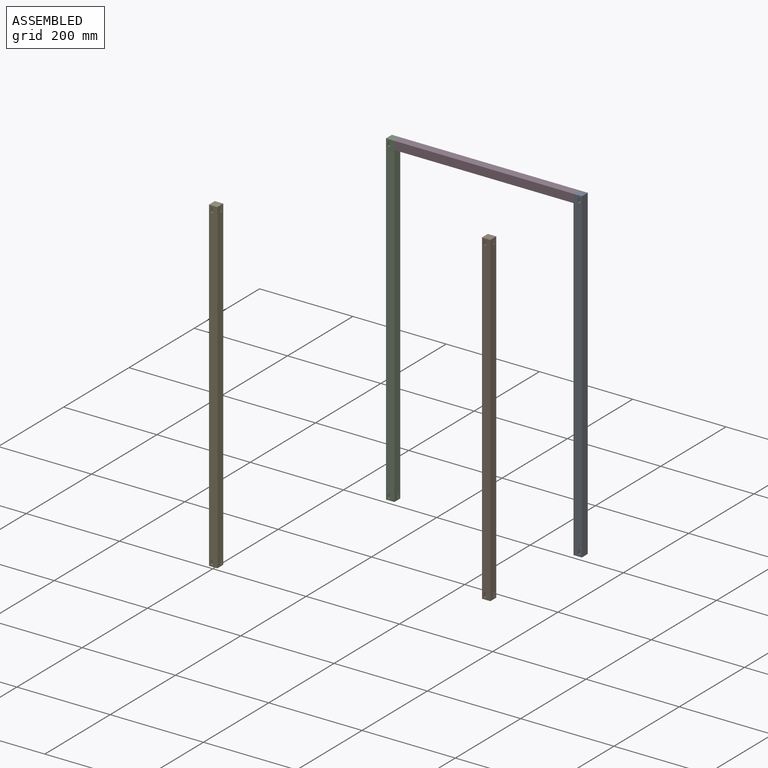
[diagram: assembled view]
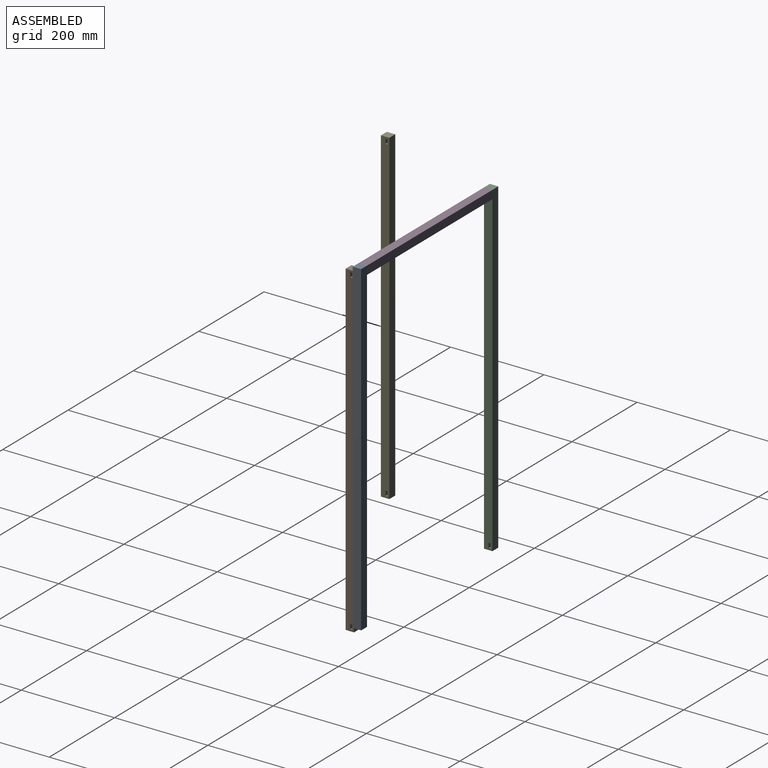
[diagram: assembled view, second angle]
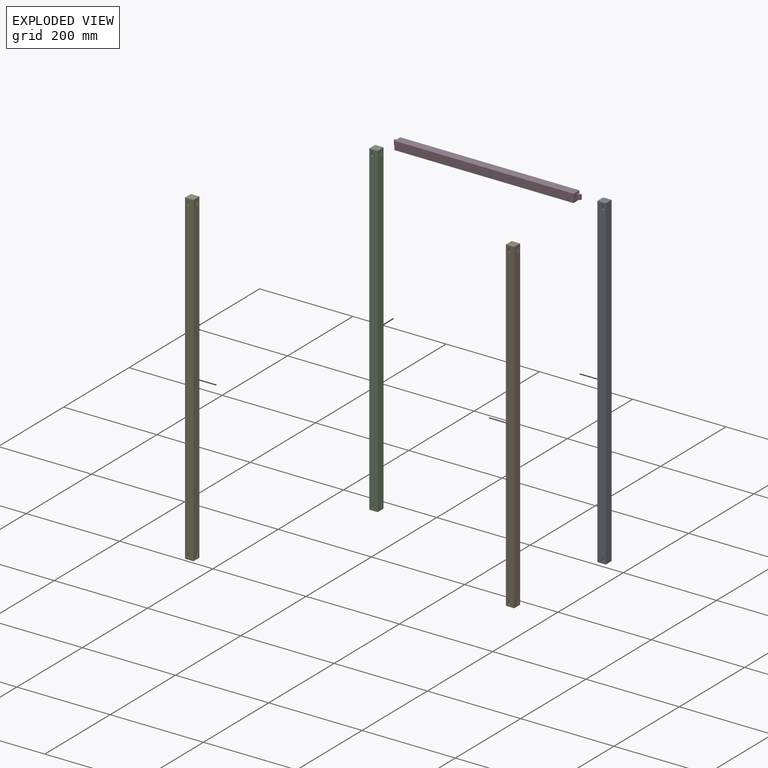
[diagram: exploded view]
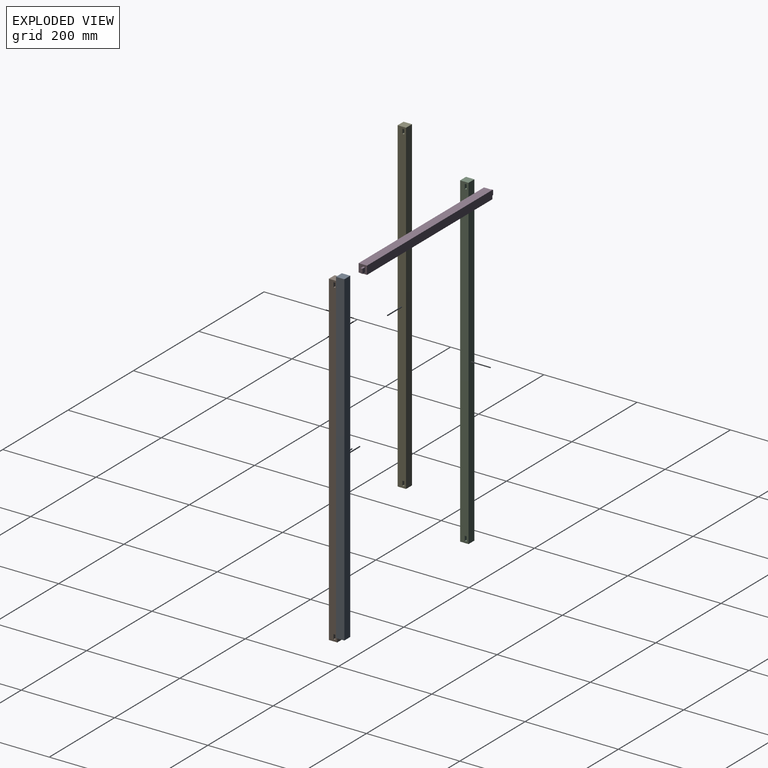
[diagram: exploded view, second angle]
ASSEMBLY  parts=5 mates=2
PART A: 26 faces, bbox 18x18x700 mm
  f0: plane 700x18mm, normal (1,0,0), area 12520mm2, adj f1,f2,f4,f5,f11,f12,f13,f14
  f1: plane 700x18mm, normal (0,-1,0), area 12521mm2, adj f0,f2,f3,f4,f6,f7,f8,f9
  f2: plane 18x18mm, normal (0,0,1), area 324mm2, adj f0,f1,f3,f5
  f3: plane 700x18mm, normal (-1,0,0), area 12600mm2, adj f1,f2,f4,f5
  f4: plane 18x18mm, normal (0,0,-1), area 324mm2, adj f0,f1,f3,f5
  f5: plane 700x18mm, normal (0,1,0), area 12600mm2, adj f0,f2,f3,f4
  f6: plane 8x4mm, normal (0,0,-1), area 32mm2, adj f1,f7,f9,f10
  f7: plane 10x8mm, normal (1,0,0), area 80mm2, adj f1,f6,f8,f10
  f8: plane 8x4mm, normal (0,0,1), area 32mm2, adj f1,f7,f9,f10
  f9: plane 10x8mm, normal (-1,0,0), area 80mm2, adj f1,f6,f8,f10
  f10: plane 10x4mm, normal (0,-1,0), area 40mm2, adj f6,f7,f8,f9
  f11: plane 8x4mm, normal (0,0,-1), area 32mm2, adj f0,f12,f14,f15
  f12: plane 10x8mm, normal (0,1,0), area 80mm2, adj f0,f11,f13,f15
  f13: plane 8x4mm, normal (0,0,1), area 32mm2, adj f0,f12,f14,f15
  f14: plane 10x8mm, normal (0,-1,0), area 80mm2, adj f0,f11,f13,f15
  f15: plane 10x4mm, normal (1,0,0), area 40mm2, adj f11,f12,f13,f14
  f16: plane 10x8mm, normal (1,0,0), area 80mm2, adj f1,f17,f19,f20
  f17: plane 8x3.9mm, normal (0,0,1), area 31.2mm2, adj f1,f16,f18,f20
  f18: plane 10x8mm, normal (-1,0,0), area 80mm2, adj f1,f17,f19,f20
  f19: plane 8x3.9mm, normal (0,0,-1), area 31.2mm2, adj f1,f16,f18,f20
  f20: plane 10x3.9mm, normal (0,-1,0), area 39mm2, adj f16,f17,f18,f19
  f21: plane 8x4mm, normal (0,0,-1), area 32mm2, adj f0,f22,f24,f25
  f22: plane 10x8mm, normal (0,1,0), area 80mm2, adj f0,f21,f23,f25
  f23: plane 8x4mm, normal (0,0,1), area 32mm2, adj f0,f22,f24,f25
  f24: plane 10x8mm, normal (0,-1,0), area 80mm2, adj f0,f21,f23,f25
  f25: plane 10x4mm, normal (1,0,0), area 40mm2, adj f21,f22,f23,f24
PART B: same geometry as A
PART C: same geometry as A
PART D: 16 faces, bbox 400x18x18 mm
  f0: plane 384x18mm, normal (0,0,1), area 6912mm2, adj f2,f3,f8,f14
  f1: plane 384x18mm, normal (0,0,-1), area 6912mm2, adj f2,f3,f8,f14
  f2: plane 384x18mm, normal (0,-1,0), area 6912mm2, adj f0,f1,f8,f14
  f3: plane 384x18mm, normal (0,1,0), area 6912mm2, adj f0,f1,f8,f14
  f4: plane 10x8mm, normal (0,1,0), area 80mm2, adj f5,f7,f8,f9
  f5: plane 8x4mm, normal (0,0,1), area 32mm2, adj f4,f6,f8,f9
  f6: plane 10x8mm, normal (0,-1,0), area 80mm2, adj f5,f7,f8,f9
  f7: plane 8x4mm, normal (0,0,-1), area 32mm2, adj f4,f6,f8,f9
  f8: plane 18x18mm, normal (-1,0,0), area 284mm2, adj f0,f1,f2,f3,f4,f5,f6,f7
  f9: plane 10x4mm, normal (-1,0,0), area 40mm2, adj f4,f5,f6,f7
  f10: plane 10x8mm, normal (0,1,0), area 80mm2, adj f11,f13,f14,f15
  f11: plane 8x4mm, normal (0,0,-1), area 32mm2, adj f10,f12,f14,f15
  f12: plane 10x8mm, normal (0,-1,0), area 80mm2, adj f11,f13,f14,f15
  f13: plane 8x4mm, normal (0,0,1), area 32mm2, adj f10,f12,f14,f15
  f14: plane 18x18mm, normal (1,0,0), area 284mm2, adj f0,f1,f2,f3,f10,f11,f12,f13
  f15: plane 10x4mm, normal (1,0,0), area 40mm2, adj f10,f11,f12,f13
PART E: same geometry as A
PLACE A rot(axis=(0,0,-1),90deg) t=(219.98,200.98,55.43)mm
PLACE B t=(139.07,160.1,-23.31)mm
PLACE C t=(-138.46,262.54,55.43)mm
PLACE D t=(10.62,262.54,603.61)mm
PLACE E t=(-289.25,-64.05,11.39)mm
MATE fastened C.f14 <-> D.f4  axis (0,-1,0) through (-186.02,258.54,571.48)mm
MATE fastened A.f10 <-> D.f15  axis (-1,0,0) through (209.98,256.54,571.48)mm
